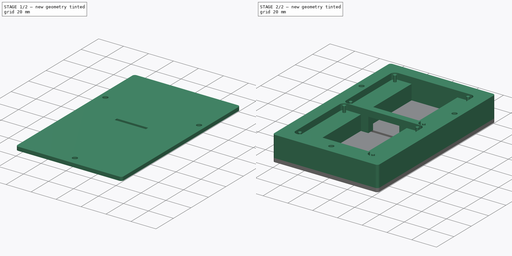
[diagram: build sequence overview — one tinted view per stage of 2, left to right]
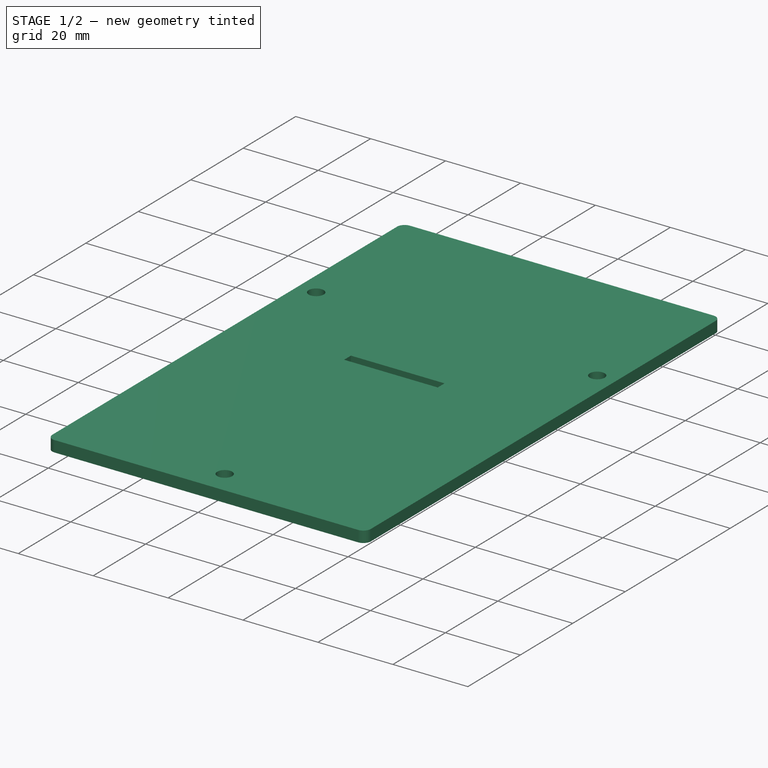
[diagram: stage 1 of 2 — iso view after this stage's code; geometry added in this stage tinted green]
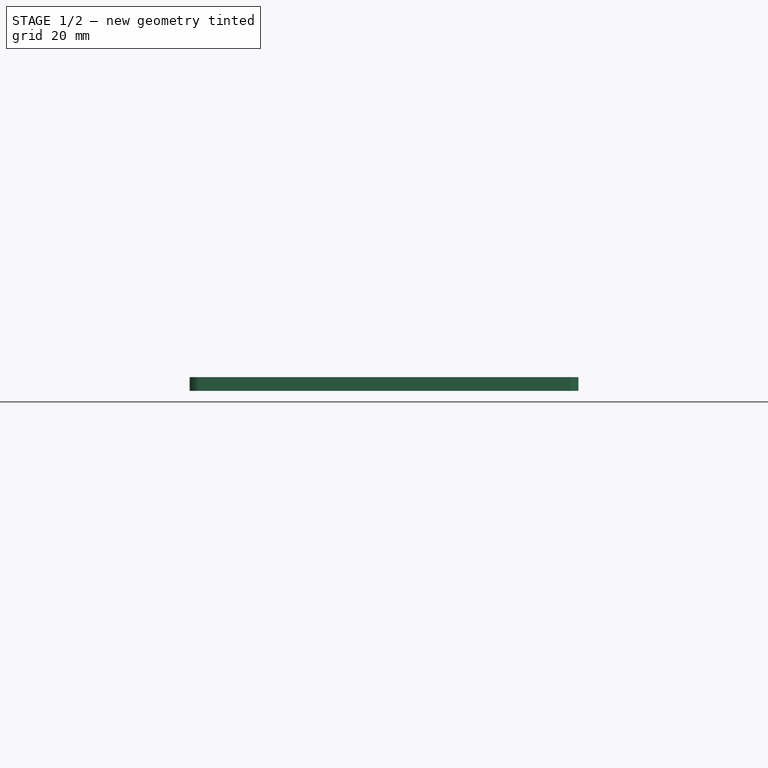
[diagram: stage 1 of 2 — front view after this stage's code; geometry added in this stage tinted green]
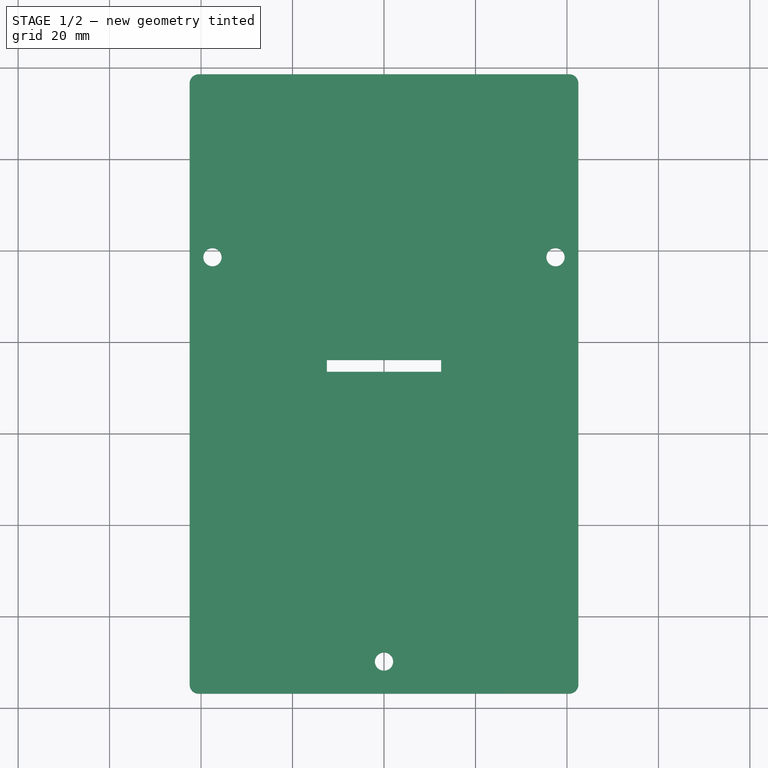
[diagram: stage 1 of 2 — top view after this stage's code; geometry added in this stage tinted green]
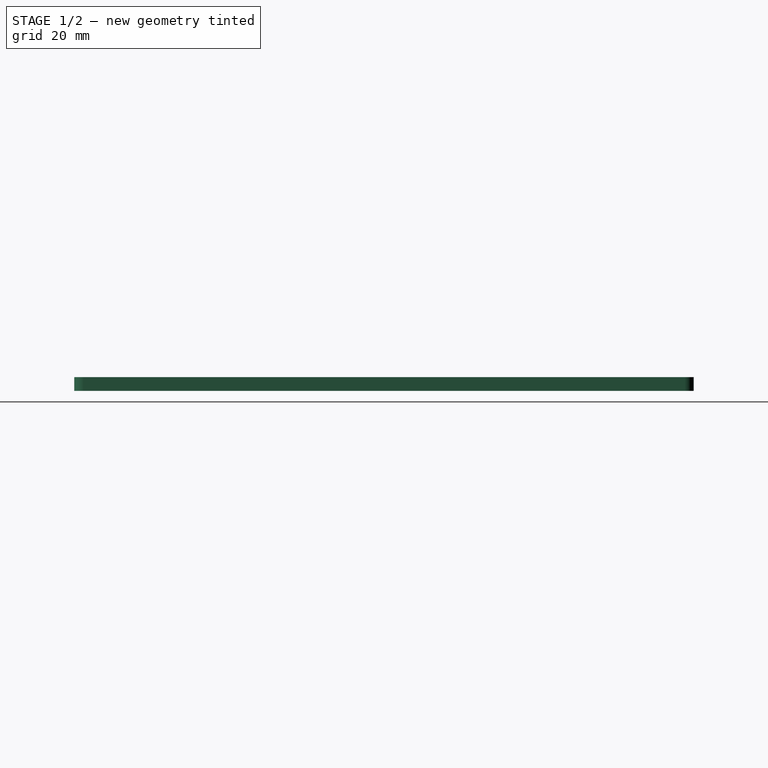
[diagram: stage 1 of 2 — right view after this stage's code; geometry added in this stage tinted green]
FCSTD DOCUMENT  (FreeCAD 1.0R39285 (Git))
Label: dd_front_nospigot
License: All rights reserved
LicenseURL: http://en.wikipedia.org/wiki/All_rights_reserved
objects: Sketcher::SketchObject×4, PartDesign::Pad×3, PartDesign::Groove×1, PartDesign::Body×1
note: 21 computed .brp shape members not serialized (recipe doc carries the construction recipe); baked Part::Feature solids carry a one-line shape summary decoded from their .brp

FEATURE [Sketcher::SketchObject] Sketch
  ArcFitTolerance = 1e-06
  AttachmentSupport = -> [XY_Plane]
  FullyConstrained = true
  MakeInternals = false
  MapMode = 5
  sketch-geometry (19):
    g0: LineSegment StartX=-42.5 StartY=56.57 StartZ=0 EndX=-42.5 EndY=-74.85 EndZ=0
    g1: LineSegment StartX=-40.5 StartY=-76.85 StartZ=0 EndX=40.5 EndY=-76.85 EndZ=0
    g2: LineSegment StartX=42.5 StartY=-74.85 StartZ=0 EndX=42.5 EndY=56.57 EndZ=0
    g3: LineSegment StartX=40.5 StartY=58.57 StartZ=0 EndX=-40.5 EndY=58.57 EndZ=0
    g4: ArcOfCircle CenterX=-40.5 CenterY=56.57 CenterZ=0 NormalX=0 NormalY=0 NormalZ=1 AngleXU=0 Radius=2 StartAngle=1.5708 EndAngle=3.14159
    g5: GeomPoint [constr] X=-42.5 Y=58.57 Z=0
    g6: ArcOfCircle CenterX=40.5 CenterY=56.57 CenterZ=0 NormalX=0 NormalY=0 NormalZ=1 AngleXU=0 Radius=2 StartAngle=-9.86e-14 EndAngle=1.5708
    g7: GeomPoint [constr] X=42.5 Y=58.57 Z=0
    g8: ArcOfCircle CenterX=40.5 CenterY=-74.85 CenterZ=0 NormalX=0 NormalY=0 NormalZ=1 AngleXU=0 Radius=2 StartAngle=4.71239 EndAngle=6.28319
    g9: GeomPoint [constr] X=42.5 Y=-76.85 Z=0
    g10: ArcOfCircle CenterX=-40.5 CenterY=-74.85 CenterZ=0 NormalX=0 NormalY=0 NormalZ=1 AngleXU=0 Radius=2 StartAngle=3.14159 EndAngle=4.71239
    g11: GeomPoint [constr] X=-42.5 Y=-76.85 Z=0
    g12: LineSegment StartX=12.5 StartY=-3.9 StartZ=0 EndX=12.5 EndY=-6.5 EndZ=0
    g13: LineSegment StartX=12.5 StartY=-6.5 StartZ=0 EndX=-12.5 EndY=-6.5 EndZ=0
    g14: LineSegment StartX=-12.5 StartY=-6.5 StartZ=0 EndX=-12.5 EndY=-3.9 EndZ=0
    g15: LineSegment StartX=-12.5 StartY=-3.9 StartZ=0 EndX=12.5 EndY=-3.9 EndZ=0
    g16: Circle CenterX=0 CenterY=-69.85 CenterZ=0 NormalX=0 NormalY=0 NormalZ=1 AngleXU=0 Radius=2
    g17: Circle CenterX=37.5 CenterY=18.57 CenterZ=0 NormalX=0 NormalY=0 NormalZ=1 AngleXU=0 Radius=2
    g18: Circle CenterX=-37.5 CenterY=18.57 CenterZ=0 NormalX=0 NormalY=0 NormalZ=1 AngleXU=0 Radius=2
  constraints (46):
    c: Vertical(g0)
    c: Vertical(g2)
    c: Horizontal(g3)
    c: Distance(g5,g7) = 85
    c: Distance(g11,g5) = 135.42
    c: PointOnObject(g5,g0)
    c: PointOnObject(g5,g3)
    c: Tangent(g0,g4) = -1.5708
    c: Tangent(g3,g4) = -1.5708
    c: PointOnObject(g7,g3)
    c: PointOnObject(g7,g2)
    c: Tangent(g3,g6) = -1.5708
    c: Tangent(g2,g6) = -1.5708
    c: PointOnObject(g9,g2)
    c: PointOnObject(g9,g1)
    c: Tangent(g2,g8) = -1.5708
    c: Tangent(g1,g8) = -1.5708
    c: PointOnObject(g11,g1)
    c: PointOnObject(g11,g0)
    c: Tangent(g1,g10) = -1.5708
    c: Tangent(g0,g10) = -1.5708
    c: Radius(g4) = 2
    c: Equal(g4,g6)
    c: Equal(g6,g8)
    c: Equal(g8,g10)
    c: Symmetric(g1,g1,g-2)
    c: Coincident(g12,g13)
    c: Coincident(g13,g14)
    c: Coincident(g14,g15)
    c: Coincident(g15,g12)
    c: Vertical(g12)
    c: Vertical(g14)
    c: Horizontal(g15)
    c: Diameter(g16) = 4
    c: Diameter(g17) = 4
    c: Diameter(g18) = 4
    c: Symmetric(g18,g17,g-2)
    c: PointOnObject(g16,g-2)
    c: Symmetric(g13,g12,g-2)
    c: DistanceX(g14,g12) = 25
    c: DistanceY(g13,g14) = 2.6
    c: DistanceY(g1,g16) = 7
    c: DistanceX(g0,g18) = 5
    c: DistanceY(g18,g3) = 40
    c: DistanceY(g1,g13) = 70.35
    c: DistanceY(g12,g-1) = 6.5
FEATURE [PartDesign::Pad] Pad
  Direction = (0,0,1)
  Length = 3
  Length2 = 10
  Profile = -> Sketch
  ReferenceAxis = -> Sketch [N_Axis]
  Suppressed = false
  Type = 0
FEATURE [Sketcher::SketchObject] Sketch001
  ArcFitTolerance = 1e-06
  AttachmentSupport = -> [XZ_Plane]
  FullyConstrained = true
  MakeInternals = false
  MapMode = 5
  Placement = pos=(0,0,0) rot=(1,0,0;1.5708rad)
  sketch-geometry (3):
    g0: LineSegment StartX=-19.5 StartY=0 StartZ=0 EndX=-18 EndY=1.5 EndZ=0
    g1: LineSegment StartX=-18 StartY=1.5 StartZ=0 EndX=-16.5 EndY=0 EndZ=0
    g2: LineSegment StartX=-16.5 StartY=0 StartZ=0 EndX=-19.5 EndY=0 EndZ=0
  constraints (9):
    c: PointOnObject(g0,g-1)
    c: Coincident(g0,g1)
    c: Coincident(g1,g2)
    c: Coincident(g2,g0)
    c: Horizontal(g2)
    c: DistanceX(g0,g-1) = 19.5
    c: DistanceX(g1,g-1) = 16.5
    c: DistanceX(g0,g1) = 1.5
    c: DistanceY(g0,g0) = 1.5
FEATURE [PartDesign::Groove] Groove
  Angle = 360
  Angle2 = 60
  Axis = (0,2e-16,1)
  Base = (0,0,0)
  BaseFeature = -> Pad
  Profile = -> Sketch001
  ReferenceAxis = -> Sketch001 [V_Axis]
  Reversed = true
  Suppressed = false
  Type = 0
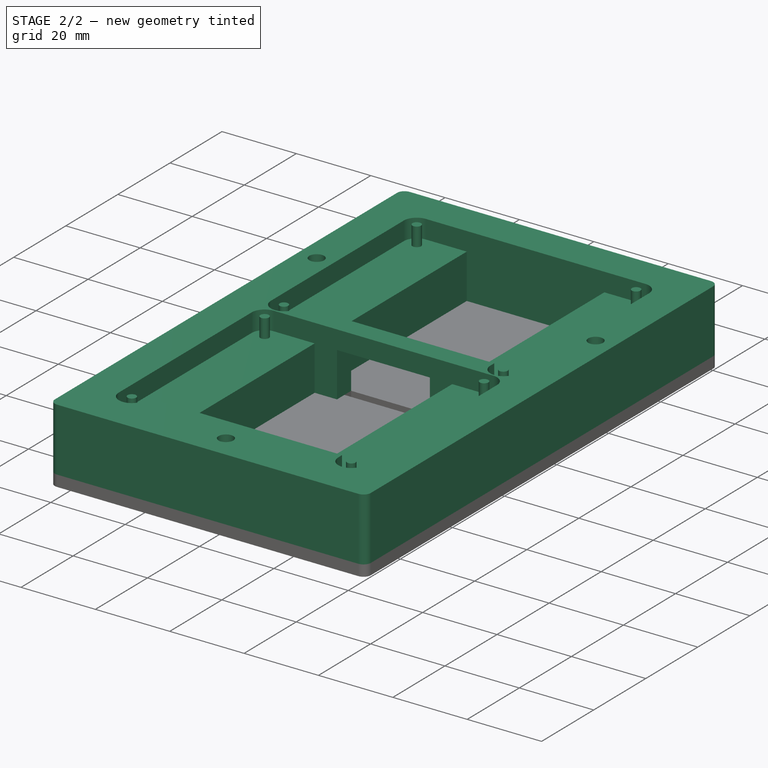
[diagram: stage 2 of 2 — iso view after this stage's code; geometry added in this stage tinted green]
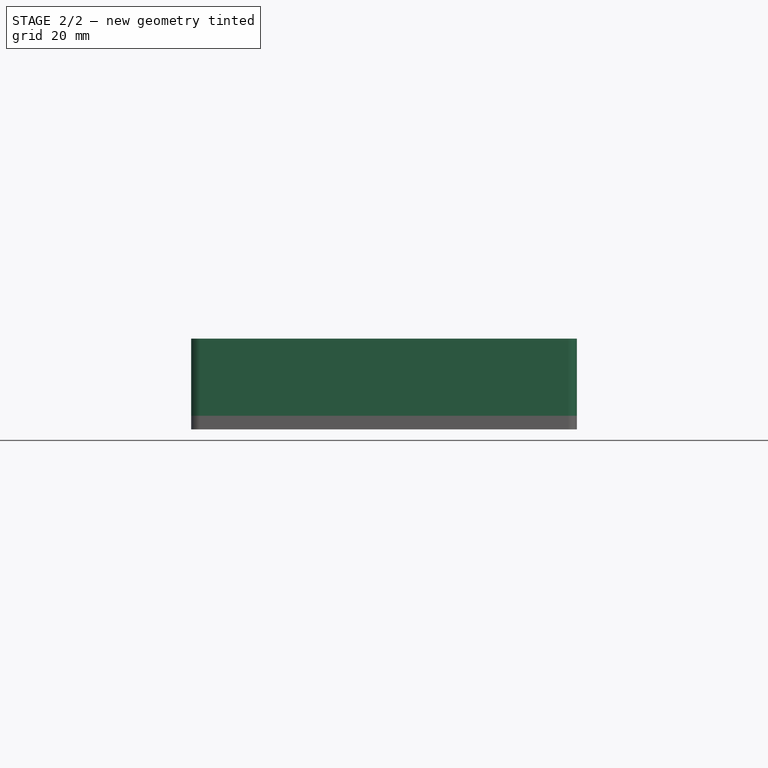
[diagram: stage 2 of 2 — front view after this stage's code; geometry added in this stage tinted green]
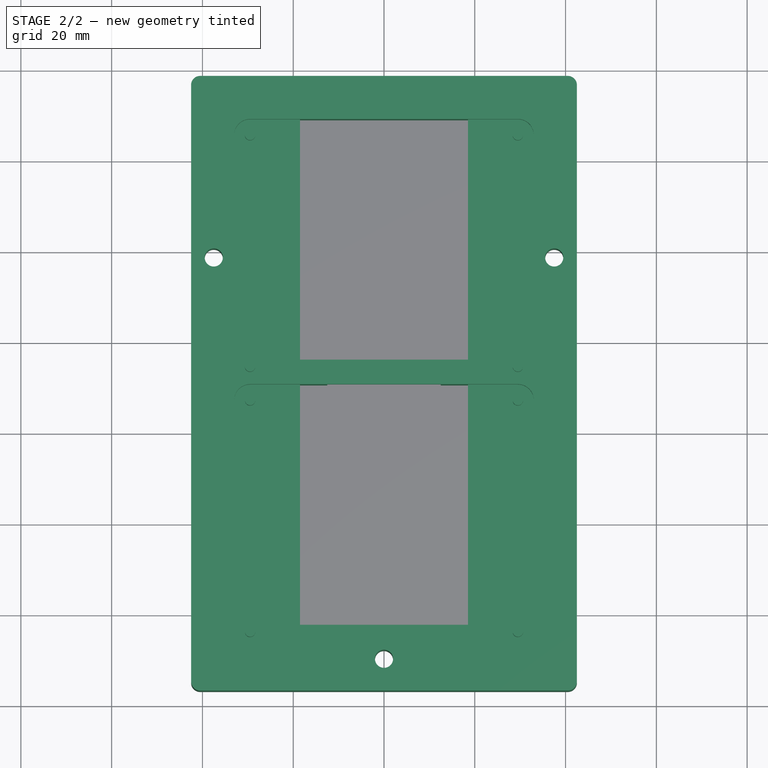
[diagram: stage 2 of 2 — top view after this stage's code; geometry added in this stage tinted green]
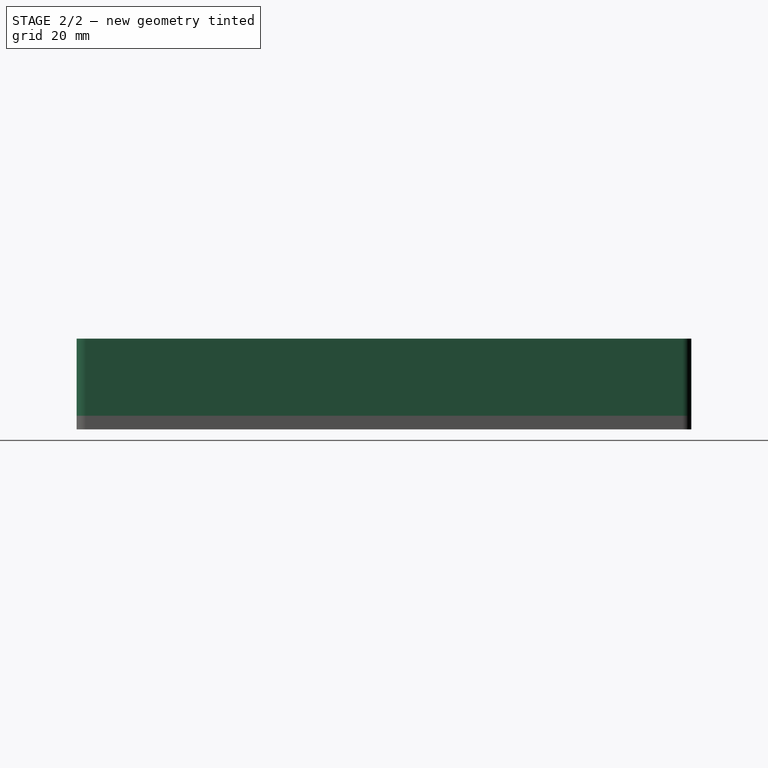
[diagram: stage 2 of 2 — right view after this stage's code; geometry added in this stage tinted green]
FEATURE [Sketcher::SketchObject] Sketch002
  ArcFitTolerance = 1e-06
  AttachmentSupport = -> [Groove]
  ExternalGeometry = -> [Groove]
  FullyConstrained = true
  MakeInternals = false
  MapMode = 5
  Placement = pos=(0,0,3) rot=(0,0,1;0rad)
  sketch-geometry (27):
    g0: LineSegment StartX=-18.5 StartY=-62.35 StartZ=0 EndX=18.5 EndY=-62.35 EndZ=0
    g1: LineSegment StartX=18.5 StartY=-62.35 StartZ=0 EndX=18.5 EndY=-9.35 EndZ=0
    g2: LineSegment StartX=18.5 StartY=-9.35 StartZ=0 EndX=12.5 EndY=-9.35 EndZ=0
    g3: LineSegment StartX=12.5 StartY=-9.35 StartZ=0 EndX=12.5 EndY=-3.93 EndZ=0
    g4: LineSegment StartX=12.5 StartY=-3.93 StartZ=0 EndX=18.5 EndY=-3.93 EndZ=0
    g5: LineSegment StartX=18.5 StartY=-3.93 StartZ=0 EndX=18.5 EndY=49.07 EndZ=0
    g6: LineSegment StartX=18.5 StartY=49.07 StartZ=0 EndX=-18.5 EndY=49.07 EndZ=0
    g7: LineSegment StartX=-18.5 StartY=49.07 StartZ=0 EndX=-18.5 EndY=-3.93 EndZ=0
    g8: LineSegment StartX=-18.5 StartY=-3.93 StartZ=0 EndX=-12.5 EndY=-3.93 EndZ=0
    g9: LineSegment StartX=-12.5 StartY=-3.93 StartZ=0 EndX=-12.5 EndY=-9.35 EndZ=0
    g10: LineSegment StartX=-12.5 StartY=-9.35 StartZ=0 EndX=-18.5 EndY=-9.35 EndZ=0
    g11: LineSegment StartX=-18.5 StartY=-9.35 StartZ=0 EndX=-18.5 EndY=-62.35 EndZ=0
    g12: LineSegment StartX=-42.5 StartY=56.57 StartZ=0 EndX=-42.5 EndY=-74.85 EndZ=0
    g13: LineSegment StartX=-40.5 StartY=-76.85 StartZ=0 EndX=40.5 EndY=-76.85 EndZ=0
    g14: LineSegment StartX=42.5 StartY=-74.85 StartZ=0 EndX=42.5 EndY=56.57 EndZ=0
    g15: LineSegment StartX=40.5 StartY=58.57 StartZ=0 EndX=-40.5 EndY=58.57 EndZ=0
    g16: ArcOfCircle CenterX=-40.5 CenterY=56.57 CenterZ=0 NormalX=0 NormalY=0 NormalZ=1 AngleXU=0 Radius=2 StartAngle=1.5708 EndAngle=3.14159
    g17: GeomPoint [constr] X=-42.5 Y=58.57 Z=0
    g18: ArcOfCircle CenterX=40.5 CenterY=56.57 CenterZ=0 NormalX=0 NormalY=0 NormalZ=1 AngleXU=0 Radius=2 StartAngle=1.8e-15 EndAngle=1.5708
    g19: GeomPoint [constr] X=42.5 Y=58.57 Z=0
    g20: ArcOfCircle CenterX=-40.5 CenterY=-74.85 CenterZ=0 NormalX=0 NormalY=0 NormalZ=1 AngleXU=0 Radius=2 StartAngle=3.14159 EndAngle=4.71239
    g21: GeomPoint [constr] X=-42.5 Y=-76.85 Z=0
    g22: ArcOfCircle CenterX=40.5 CenterY=-74.85 CenterZ=0 NormalX=0 NormalY=0 NormalZ=1 AngleXU=0 Radius=2 StartAngle=4.71239 EndAngle=6.28319
    g23: GeomPoint [constr] X=42.5 Y=-76.85 Z=0
    g24: Circle CenterX=-37.5 CenterY=18.57 CenterZ=0 NormalX=0 NormalY=0 NormalZ=1 AngleXU=0 Radius=2
    g25: Circle CenterX=37.5 CenterY=18.57 CenterZ=0 NormalX=0 NormalY=0 NormalZ=1 AngleXU=0 Radius=2
    g26: Circle CenterX=0 CenterY=-69.85 CenterZ=0 NormalX=0 NormalY=0 NormalZ=1 AngleXU=0 Radius=2
  constraints (70):
    c: Coincident(g0,g1)
    c: Coincident(g1,g2)
    c: Horizontal(g2)
    c: Coincident(g2,g3)
    c: Coincident(g3,g4)
    c: Horizontal(g4)
    c: Coincident(g4,g5)
    c: Vertical(g5)
    c: Coincident(g5,g6)
    c: Horizontal(g6)
    c: Coincident(g6,g7)
    c: Coincident(g7,g8)
    c: Coincident(g8,g9)
    c: Vertical(g9)
    c: Coincident(g9,g10)
    c: Coincident(g10,g11)
    c: Coincident(g11,g0)
    c: Vertical(g11)
    c: Vertical(g1)
    c: Horizontal(g0)
    c: Vertical(g7)
    c: Vertical(g3)
    c: Horizontal(g8)
    c: Horizontal(g10)
    c: DistanceX(g-3,g6) = 24
    c: DistanceX(g-3,g0) = 24
    c: DistanceX(g0,g-5) = 24
    c: DistanceX(g5,g-5) = 24
    c: DistanceY(g5,g-4) = 9.5
    c: DistanceY(g-6,g0) = 14.5
    c: DistanceY(g-6,g9) = 67.5
    c: DistanceY(g10,g7) = 5.42
    c: DistanceY(g7,g4) = 0
    c: DistanceY(g10,g1) = 0
    c: PointOnObject(g-9,g3)
    c: PointOnObject(g-9,g9)
    c: PointOnObject(g17,g12)
    c: PointOnObject(g17,g15)
    c: Tangent(g12,g16) = -1.5708
    c: Tangent(g15,g16) = -1.5708
    c: PointOnObject(g19,g15)
    c: PointOnObject(g19,g14)
    c: Tangent(g15,g18) = -1.5708
    c: Tangent(g14,g18) = -1.5708
    c: PointOnObject(g21,g12)
    c: PointOnObject(g21,g13)
    c: Tangent(g12,g20) = -1.5708
    c: Tangent(g13,g20) = -1.5708
    c: PointOnObject(g23,g13)
    c: PointOnObject(g23,g14)
    c: Tangent(g13,g22) = -1.5708
    c: Tangent(g14,g22) = -1.5708
    c: Coincident(g12,g-3)
    c: Coincident(g13,g-6)
    c: Coincident(g14,g-5)
    c: Coincident(g12,g-3)
    c: Coincident(g-4,g15)
    c: Coincident(g14,g-5)
    c: Diameter(g24) = 4
    c: Diameter(g25) = 4
    c: Diameter(g26) = 4
    c: Coincident(g26,g-11)
    c: Coincident(g25,g-8)
    c: Coincident(g24,g-7)
    c: DistanceY(g0,g6) = 111.42
    c: DistanceY(g7,g6) = 53
    c: DistanceY(g0,g10) = 53
    c: DistanceX(g0,g0) = 37
    c: DistanceY(g6,g15) = 9.5
    c: DistanceY(g23,g19) = 135.42
FEATURE [PartDesign::Pad] Pad001
  BaseFeature = -> Groove
  Direction = (0,0,1)
  Length = 12
  Length2 = 10
  Profile = -> Sketch002
  ReferenceAxis = -> Sketch002 [N_Axis]
  Suppressed = false
  Type = 0
FEATURE [Sketcher::SketchObject] Sketch003
  ArcFitTolerance = 1e-06
  AttachmentSupport = -> [Pad001]
  ExternalGeometry = -> [Pad001]
  FullyConstrained = false
  MakeInternals = false
  MapMode = 5
  Placement = pos=(0,0,15) rot=(0,0,1;0rad)
  sketch-geometry (47):
    g0: Circle CenterX=-29.5 CenterY=45.57 CenterZ=0 NormalX=0 NormalY=0 NormalZ=1 AngleXU=0 Radius=1.15
    g1: Circle CenterX=29.5 CenterY=45.57 CenterZ=0 NormalX=0 NormalY=0 NormalZ=1 AngleXU=0 Radius=1.15
    g2: Circle CenterX=-29.5 CenterY=-5.43 CenterZ=0 NormalX=0 NormalY=0 NormalZ=1 AngleXU=0 Radius=1.15
    g3: Circle CenterX=29.5 CenterY=-12.85 CenterZ=0 NormalX=0 NormalY=0 NormalZ=1 AngleXU=0 Radius=1.15
    g4: Circle CenterX=29.5 CenterY=-63.85 CenterZ=0 NormalX=0 NormalY=0 NormalZ=1 AngleXU=0 Radius=1.15
    g5: Circle CenterX=-29.5 CenterY=-63.85 CenterZ=0 NormalX=0 NormalY=0 NormalZ=1 AngleXU=0 Radius=1.15
    g6: Circle CenterX=-29.5 CenterY=-12.85 CenterZ=0 NormalX=0 NormalY=0 NormalZ=1 AngleXU=0 Radius=1.15
    g7: LineSegment StartX=-33 StartY=45.57 StartZ=0 EndX=-33 EndY=-5.43 EndZ=0
    g8: LineSegment StartX=33 StartY=-5.43 StartZ=0 EndX=33 EndY=45.57 EndZ=0
    g9: LineSegment StartX=29.5 StartY=49.07 StartZ=0 EndX=-29.5 EndY=49.07 EndZ=0
    g10: ArcOfCircle CenterX=-29.5 CenterY=45.57 CenterZ=0 NormalX=0 NormalY=0 NormalZ=1 AngleXU=0 Radius=3.5 StartAngle=1.5708 EndAngle=3.14159
    g11: GeomPoint [constr] X=-33 Y=49.07 Z=0
    g12: ArcOfCircle CenterX=29.5 CenterY=45.57 CenterZ=0 NormalX=0 NormalY=0 NormalZ=1 AngleXU=0 Radius=3.5 StartAngle=-9e-16 EndAngle=1.5708
    g13: GeomPoint [constr] X=33 Y=49.07 Z=0
    g14: ArcOfCircle CenterX=-29.5 CenterY=-5.43 CenterZ=0 NormalX=0 NormalY=0 NormalZ=1 AngleXU=0 Radius=3.5 StartAngle=3.14159 EndAngle=6.28319
    g15: ArcOfCircle CenterX=29.5 CenterY=-5.43 CenterZ=0 NormalX=0 NormalY=0 NormalZ=1 AngleXU=0 Radius=3.5 StartAngle=3.14159 EndAngle=6.28319
    g16: LineSegment StartX=-26 StartY=-5.43 StartZ=0 EndX=-26 EndY=-3.93 EndZ=0
    g17: LineSegment StartX=-26 StartY=-3.93 StartZ=0 EndX=26 EndY=-3.93 EndZ=0
    g18: LineSegment StartX=26 StartY=-3.93 StartZ=0 EndX=26 EndY=-5.43 EndZ=0
    g19: LineSegment StartX=-33 StartY=-12.85 StartZ=0 EndX=-33 EndY=-63.85 EndZ=0
    g20: LineSegment StartX=33 StartY=-63.85 StartZ=0 EndX=33 EndY=-12.85 EndZ=0
    g21: LineSegment StartX=29.5 StartY=-9.35 StartZ=0 EndX=-29.5 EndY=-9.35 EndZ=0
    g22: ArcOfCircle CenterX=-29.5 CenterY=-12.85 CenterZ=0 NormalX=0 NormalY=0 NormalZ=1 AngleXU=0 Radius=3.5 StartAngle=1.5708 EndAngle=3.14159
    g23: GeomPoint [constr] X=-33 Y=-9.35 Z=0
    g24: ArcOfCircle CenterX=29.5 CenterY=-12.85 CenterZ=0 NormalX=0 NormalY=0 NormalZ=1 AngleXU=0 Radius=3.5 StartAngle=0 EndAngle=1.5708
    g25: GeomPoint [constr] X=33 Y=-9.35 Z=0
    g26: ArcOfCircle CenterX=-29.5 CenterY=-63.85 CenterZ=0 NormalX=0 NormalY=0 NormalZ=1 AngleXU=0 Radius=3.5 StartAngle=3.14159 EndAngle=6.28319
    g27: ArcOfCircle CenterX=29.5 CenterY=-63.85 CenterZ=0 NormalX=0 NormalY=0 NormalZ=1 AngleXU=0 Radius=3.5 StartAngle=3.16266 EndAngle=6.28319
    g28: LineSegment StartX=-26 StartY=-63.85 StartZ=0 EndX=-26 EndY=-62.35 EndZ=0
    g29: LineSegment StartX=-26 StartY=-62.35 StartZ=0 EndX=25.9676 EndY=-62.35 EndZ=0
    g30: LineSegment StartX=25.9676 StartY=-62.35 StartZ=0 EndX=26.0008 EndY=-63.9237 EndZ=0
    g31: LineSegment StartX=-42.5 StartY=56.57 StartZ=0 EndX=-42.5 EndY=-74.85 EndZ=0
    g32: LineSegment StartX=-40.5 StartY=-76.85 StartZ=0 EndX=40.5 EndY=-76.85 EndZ=0
    g33: LineSegment StartX=42.5 StartY=-74.85 StartZ=0 EndX=42.5 EndY=56.57 EndZ=0
    g34: LineSegment StartX=40.5 StartY=58.57 StartZ=0 EndX=-40.5 EndY=58.57 EndZ=0
    g35: ArcOfCircle CenterX=-40.5 CenterY=56.57 CenterZ=0 NormalX=0 NormalY=0 NormalZ=1 AngleXU=0 Radius=2 StartAngle=1.5708 EndAngle=3.14159
    g36: GeomPoint [constr] X=-42.5 Y=58.57 Z=0
    g37: ArcOfCircle CenterX=40.5 CenterY=56.57 CenterZ=0 NormalX=0 NormalY=0 NormalZ=1 AngleXU=0 Radius=2 StartAngle=-1.8e-15 EndAngle=1.5708
    g38: GeomPoint [constr] X=42.5 Y=58.57 Z=0
    g39: ArcOfCircle CenterX=40.5 CenterY=-74.85 CenterZ=0 NormalX=0 NormalY=0 NormalZ=1 AngleXU=0 Radius=2 StartAngle=4.71239 EndAngle=6.28319
    g40: GeomPoint [constr] X=42.5 Y=-76.85 Z=0
    g41: ArcOfCircle CenterX=-40.5 CenterY=-74.85 CenterZ=0 NormalX=0 NormalY=0 NormalZ=1 AngleXU=0 Radius=2 StartAngle=3.14159 EndAngle=4.71239
    g42: GeomPoint [constr] X=-42.5 Y=-76.85 Z=0
    g43: Circle CenterX=29.5 CenterY=-5.43 CenterZ=0 NormalX=0 NormalY=0 NormalZ=1 AngleXU=0 Radius=1.15
    g44: Circle CenterX=-37.5 CenterY=18.57 CenterZ=0 NormalX=0 NormalY=0 NormalZ=1 AngleXU=0 Radius=2
    g45: Circle CenterX=37.5 CenterY=18.57 CenterZ=0 NormalX=0 NormalY=0 NormalZ=1 AngleXU=0 Radius=2
    g46: Circle CenterX=0 CenterY=-69.85 CenterZ=0 NormalX=0 NormalY=0 NormalZ=1 AngleXU=0 Radius=2
  constraints (101):
    c: Diameter(g0) = 2.3
    c: Diameter(g1) = 2.3
    c: Diameter(g2) = 2.3
    c: Diameter(g3) = 2.3
    c: Diameter(g4) = 2.3
    c: Diameter(g5) = 2.3
    c: Diameter(g6) = 2.3
    c: Symmetric(g0,g1,g-2)
    c: Symmetric(g6,g3,g-2)
    c: Symmetric(g5,g4,g-2)
    c: DistanceY(g5,g6) = 51
    c: DistanceY(g2,g0) = 51
    c: DistanceY(g6,g0) = 58.42
    c: DistanceX(g0,g1) = 59
    c: DistanceX(g6,g3) = 59
    c: DistanceX(g5,g4) = 59
    c: DistanceY(g-5,g5) = 13
    c: Vertical(g7)
    c: Vertical(g8)
    c: Horizontal(g9)
    c: PointOnObject(g11,g7)
    c: PointOnObject(g11,g9)
    c: Tangent(g7,g10) = -1.5708
    c: Tangent(g9,g10) = -1.5708
    c: PointOnObject(g13,g9)
    c: PointOnObject(g13,g8)
    c: Tangent(g9,g12) = -1.5708
    c: Tangent(g8,g12) = -1.5708
    c: Coincident(g14,g2)
    c: Radius(g10) = 3.5
    c: Coincident(g12,g1)
    c: Coincident(g10,g0)
    c: Vertical(g16)
    c: Coincident(g16,g17)
    c: Horizontal(g17)
    c: Coincident(g17,g18)
    c: Vertical(g18)
    c: Tangent(g16,g14) = -1.5708
    c: Tangent(g18,g15) = -1.5708
    c: DistanceY(g14,g16) = 1.5
    c: Tangent(g7,g14) = -1.5708
    c: Tangent(g8,g15) = -1.5708
    c: DistanceX(g7,g8) = 66
    c: DistanceY(g9,g-3) = 9.5
    c: DistanceY(g16,g9) = 53
    c: Vertical(g19)
    c: Vertical(g20)
    c: Horizontal(g21)
    c: PointOnObject(g23,g19)
    c: PointOnObject(g23,g21)
    c: Tangent(g19,g22) = -1.5708
    c: Tangent(g21,g22) = -1.5708
    c: PointOnObject(g25,g21)
    c: PointOnObject(g25,g20)
    c: Tangent(g21,g24) = -1.5708
    c: Tangent(g20,g24) = -1.5708
    c: Radius(g22) = 3.5
    c: Coincident(g22,g6)
    c: Coincident(g26,g5)
    c: Coincident(g27,g4)
    c: Coincident(g28,g29)
    c: Coincident(g29,g30)
    c: Horizontal(g29)
    c: Vertical(g28)
    c: Tangent(g27,g30) = -1.5708
    c: Coincident(g24,g3)
    c: DistanceY(g5,g28) = 1.5
    c: Tangent(g19,g26) = -1.5708
    c: Tangent(g28,g26) = -1.5708
    c: Tangent(g20,g27) = -1.5708
    c: Vertical(g31)
    c: Horizontal(g32)
    c: PointOnObject(g36,g31)
    c: PointOnObject(g36,g34)
    c: Tangent(g31,g35) = -1.5708
    c: Tangent(g34,g35) = -1.5708
    c: PointOnObject(g38,g34)
    c: PointOnObject(g38,g33)
    c: Tangent(g34,g37) = -1.5708
    c: Tangent(g33,g37) = -1.5708
    c: PointOnObject(g40,g32)
    c: PointOnObject(g40,g33)
    c: Tangent(g32,g39) = -1.5708
    c: Tangent(g33,g39) = -1.5708
    c: PointOnObject(g42,g31)
    c: PointOnObject(g42,g32)
    c: Tangent(g31,g41) = -1.5708
    c: Tangent(g32,g41) = -1.5708
    c: Coincident(g31,g-4)
    c: Coincident(g34,g-3)
    c: Coincident(g32,g-5)
    c: Coincident(g33,g-6)
    c: Coincident(g33,g-6)
    c: Diameter(g43) = 2.3
    c: Coincident(g43,g15)
    c: Coincident(g44,g-8)
    c: Equal(g44,g-8)
    c: Coincident(g45,g-7)
    c: Equal(g45,g-7)
    c: Coincident(g46,g-9)
    c: Equal(g46,g-9)
FEATURE [PartDesign::Pad] Pad002
  BaseFeature = -> Pad001
  Direction = (0,0,1)
  Length = 5
  Length2 = 10
  Profile = -> Sketch003
  ReferenceAxis = -> Sketch003 [N_Axis]
  Suppressed = false
  Type = 0
FEATURE [PartDesign::Body] Body
  AllowCompound = false
  Group = -> [Sketch,Pad,Sketch001,Groove,Sketch002,Pad001,Sketch003,Pad002]
  Origin = -> Origin
  Tip = -> Pad002
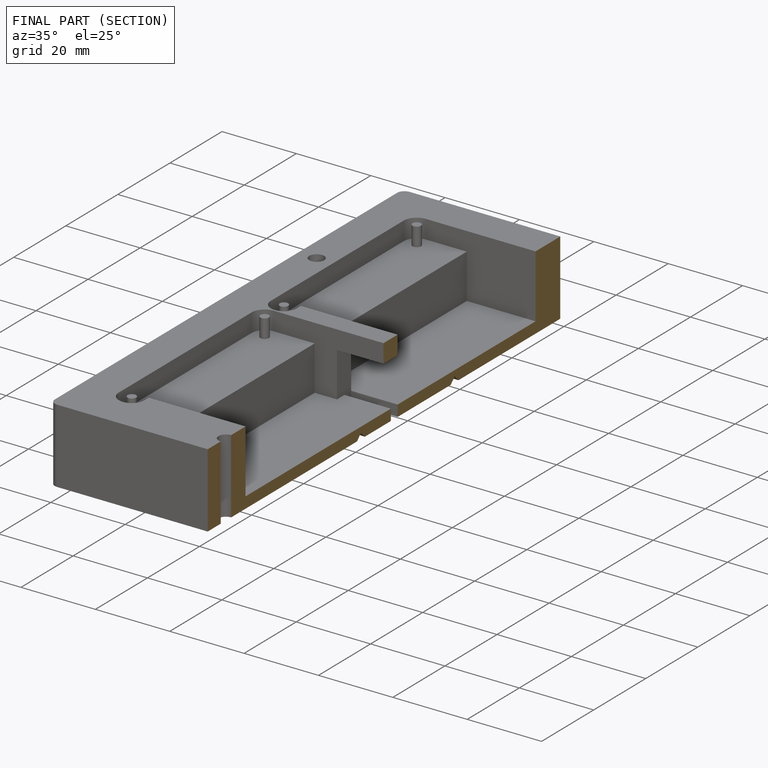
[diagram: finished part — half-section view (interior)]
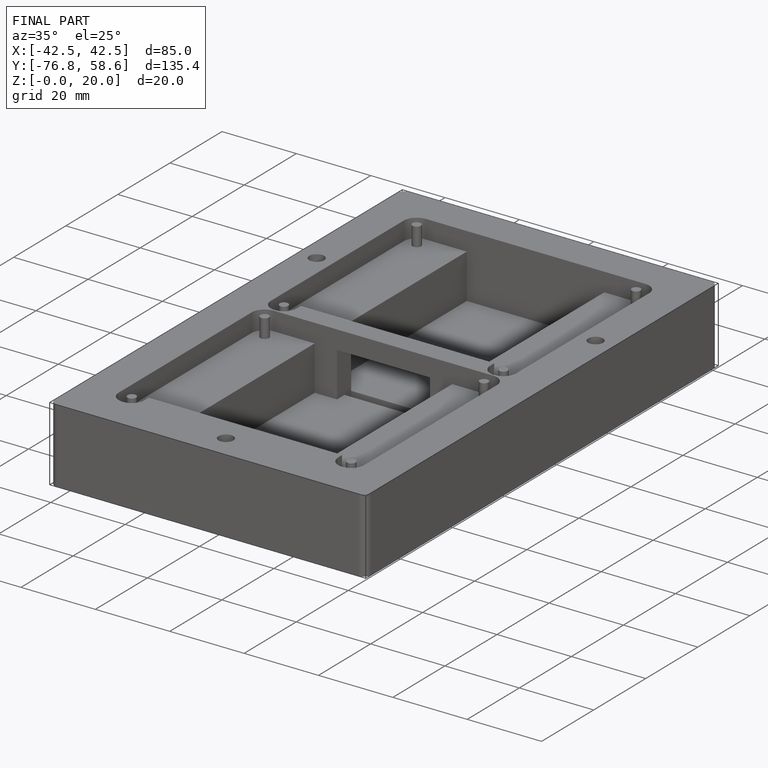
[diagram: finished part — iso view with bounding-box wireframe]
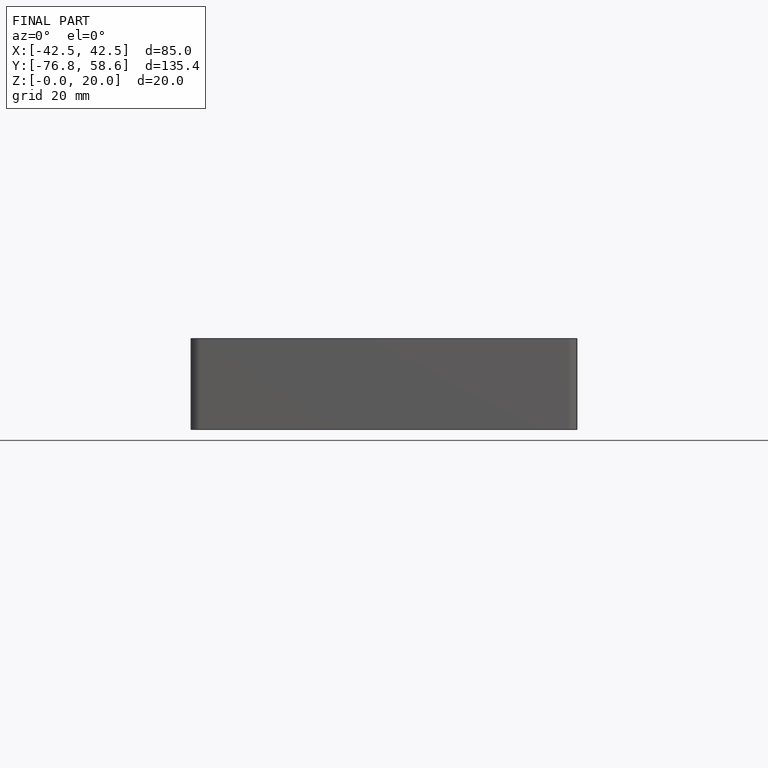
[diagram: finished part — front view with bounding-box wireframe]
